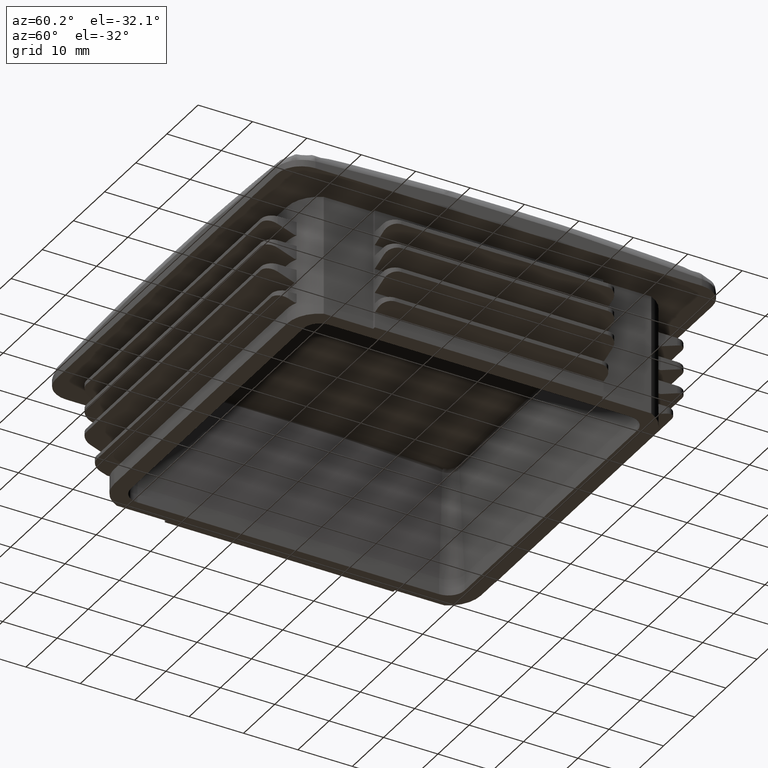
[diagram: clean part render]
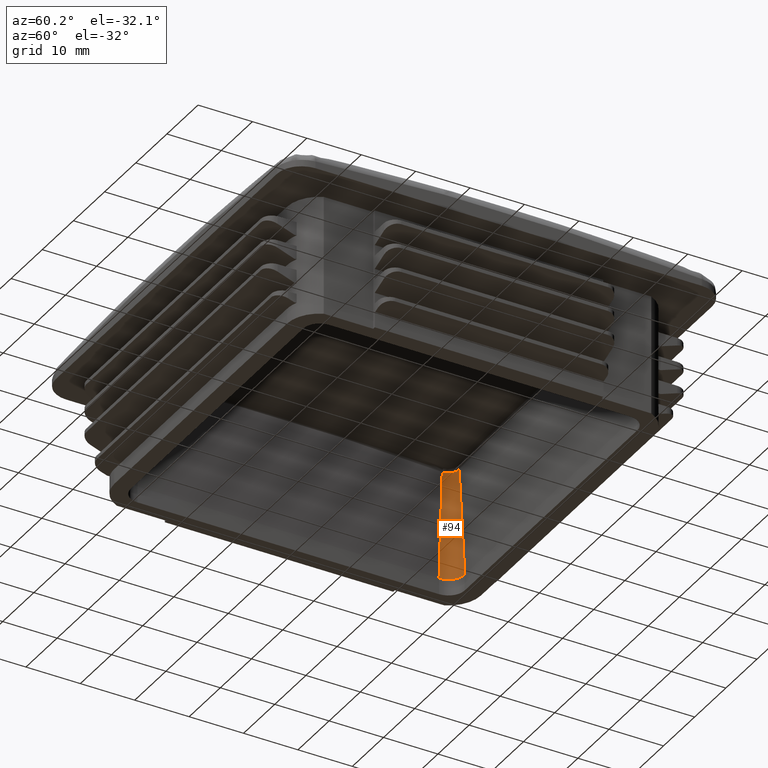
[diagram: same view with one face highlighted and labeled with its STEP entity id]
A machine part, auxiliary view. The second image highlights one B-rep face of the part: STEP entity #94.
In plain terms, the highlighted conical surface has half-angle 3 deg.
Its self-contained STEP definition (entity closure, byte-faithful):
#94 = ADVANCED_FACE( '', ( #376 ), #377, .F. );
#376 = FACE_OUTER_BOUND( '', #1741, .T. );
#377 = CONICAL_SURFACE( '', #1742, 3.00000000000000, 0.0523598775598299 );
#1741 = EDGE_LOOP( '', ( #3614, #3615, #3616, #3617 ) );
#1742 = AXIS2_PLACEMENT_3D( '', #3618, #3619, #3620 );
#3614 = ORIENTED_EDGE( '', *, *, #5672, .F. );
#3615 = ORIENTED_EDGE( '', *, *, #5671, .T. );
#3616 = ORIENTED_EDGE( '', *, *, #5669, .T. );
#3617 = ORIENTED_EDGE( '', *, *, #5676, .F. );
#3618 = CARTESIAN_POINT( '', ( -27.7000000000000, 27.7000000000000, 3.00000000000000 ) );
#3619 = DIRECTION( '', ( 0.000000000000000, 0.000000000000000, -1.00000000000000 ) );
#3620 = DIRECTION( '', ( 1.00000000000000, 0.000000000000000, 0.000000000000000 ) );
#5669 = EDGE_CURVE( '', #6411, #6420, #6421, .T. );
#5671 = EDGE_CURVE( '', #6417, #6411, #6423, .T. );
#5672 = EDGE_CURVE( '', #6417, #6424, #6425, .T. );
#5676 = EDGE_CURVE( '', #6424, #6420, #6431, .T. );
#6411 = VERTEX_POINT( '', #7946 );
#6417 = VERTEX_POINT( '', #7966 );
#6420 = VERTEX_POINT( '', #7982 );
#6421 = LINE( '', #7983, #7984 );
#6423 = B_SPLINE_CURVE_WITH_KNOTS( '', 3, ( #7987, #7988, #7989, #7990, #7991, #7992, #7993, #7994, #7995, #7996, #7997, #7998, #7999, #8000, #8001, #8002, #8003, #8004, #8005, #8006, #8007, #8008, #8009, #8010, #8011, #8012, #8013, #8014, #8015, #8016, #8017, #8018, #8019, #8020, #8021, #8022, #8023, #8024, #8025, #8026, #8027, #8028, #8029 ), .UNSPECIFIED., .F., .F., ( 4, 1, 1, 2, 1, 2, 2, 2, 1, 2, 1, 2, 2, 1, 1, 2, 2, 2, 2, 1, 2, 1, 2, 2, 1, 1, 4 ), ( 0.000000000000000, 0.000193507549806270, 0.000387015099612540, 0.000580522649418811, 0.000628899536870372, 0.000653087980596149, 0.000677276424321926, 0.000774030199225053, 0.000967537749031303, 0.00116104529883755, 0.00125779907374068, 0.00130617596119224, 0.00135455284864380, 0.00154806039845002, 0.00174156794825624, 0.00193507549806245, 0.00198345238551401, 0.00203182927296557, 0.00212858304786869, 0.00232209059767491, 0.00251559814748113, 0.00261235192238424, 0.00263654036611001, 0.00266072880983579, 0.00270910569728733, 0.00290261324709350, 0.00309612079689966 ), .UNSPECIFIED. );
#6424 = VERTEX_POINT( '', #8030 );
#6425 = LINE( '', #8031, #8032 );
#6431 = CIRCLE( '', #8141, 3.00000000000000 );
#7946 = CARTESIAN_POINT( '', ( -29.6807859189753, 27.7000000000000, 22.4477631940896 ) );
#7966 = CARTESIAN_POINT( '', ( -27.7000000000000, 29.6807859189753, 22.4477631940896 ) );
#7982 = CARTESIAN_POINT( '', ( -30.7000000000000, 27.7000000000000, 3.00000000000000 ) );
#7983 = CARTESIAN_POINT( '', ( -30.7000000000000, 27.7000000000000, 3.00000000000000 ) );
#7984 = VECTOR( '', #11391, 1000.00000000000 );
#7987 = CARTESIAN_POINT( '', ( -27.7000000000000, 29.6807859189753, 22.4477631940896 ) );
#7988 = CARTESIAN_POINT( '', ( -27.7653997939538, 29.6808814037550, 22.4459412359559 ) );
#7989 = CARTESIAN_POINT( '', ( -27.8951155579568, 29.6746008881683, 22.4425069412676 ) );
#7990 = CARTESIAN_POINT( '', ( -28.0865491098995, 29.6464306271794, 22.4379632971554 ) );
#7991 = CARTESIAN_POINT( '', ( -28.2120903478961, 29.6152239938160, 22.4353373281579 ) );
#7992 = CARTESIAN_POINT( '', ( -28.2898881186826, 29.5917461071212, 22.4338250988598 ) );
#7993 = CARTESIAN_POINT( '', ( -28.3131774215098, 29.5844040197862, 22.4333811275582 ) );
#7994 = CARTESIAN_POINT( '', ( -28.3363908960157, 29.5766091586442, 22.4329518571562 ) );
#7995 = CARTESIAN_POINT( '', ( -28.3518495916437, 29.5713113512778, 22.4326689640393 ) );
#7996 = CARTESIAN_POINT( '', ( -28.3595716588456, 29.5686113196480, 22.4325291419795 ) );
#7997 = CARTESIAN_POINT( '', ( -28.3980317735722, 29.5548957254738, 22.4318402043691 ) );
#7998 = CARTESIAN_POINT( '', ( -28.4284052598045, 29.5432053817714, 22.4313200025057 ) );
#7999 = CARTESIAN_POINT( '', ( -28.5183655472036, 29.5060237608007, 22.4298504095610 ) );
#8000 = CARTESIAN_POINT( '', ( -28.6352243758452, 29.4508301574766, 22.4281332175581 ) );
#8001 = CARTESIAN_POINT( '', ( -28.7460177152047, 29.3846021788004, 22.4268920521627 ) );
#8002 = CARTESIAN_POINT( '', ( -28.8268136932628, 29.3307487904463, 22.4261416649997 ) );
#8003 = CARTESIAN_POINT( '', ( -28.8666359064621, 29.3027746410280, 22.4258116728382 ) );
#8004 = CARTESIAN_POINT( '', ( -28.9055802184810, 29.2732034077333, 22.4255506082595 ) );
#8005 = CARTESIAN_POINT( '', ( -28.9313457068620, 29.2531301656748, 22.4253920634555 ) );
#8006 = CARTESIAN_POINT( '', ( -28.9441339303165, 29.2429098111980, 22.4253205406806 ) );
#8007 = CARTESIAN_POINT( '', ( -29.0072254482309, 29.1911942847224, 22.4250036840743 ) );
#8008 = CARTESIAN_POINT( '', ( -29.1033206388220, 29.1040946785050, 22.4247531212447 ) );
#8009 = CARTESIAN_POINT( '', ( -29.2333463051486, 28.9607728914345, 22.4251234710068 ) );
#8010 = CARTESIAN_POINT( '', ( -29.3106339380138, 28.8567904872666, 22.4258669960090 ) );
#8011 = CARTESIAN_POINT( '', ( -29.3559207772278, 28.7890924074176, 22.4264911799241 ) );
#8012 = CARTESIAN_POINT( '', ( -29.3648268936544, 28.7754170190508, 22.4266240094194 ) );
#8013 = CARTESIAN_POINT( '', ( -29.3823331088817, 28.7477915424292, 22.4269058385264 ) );
#8014 = CARTESIAN_POINT( '', ( -29.3909029341497, 28.7338889406242, 22.4270543587421 ) );
#8015 = CARTESIAN_POINT( '', ( -29.4160394030861, 28.6919613341025, 22.4275219930602 ) );
#8016 = CARTESIAN_POINT( '', ( -29.4320463285737, 28.6636963034667, 22.4278633740579 ) );
#8017 = CARTESIAN_POINT( '', ( -29.4778547682120, 28.5779779521617, 22.4289748044058 ) );
#8018 = CARTESIAN_POINT( '', ( -29.5330435648821, 28.4612291497448, 22.4306890670763 ) );
#8019 = CARTESIAN_POINT( '', ( -29.5766142084327, 28.3396318197493, 22.4328615250221 ) );
#8020 = CARTESIAN_POINT( '', ( -29.6048687752318, 28.2465878256420, 22.4346652258030 ) );
#8021 = CARTESIAN_POINT( '', ( -29.6157183268858, 28.2074342279142, 22.4354531566599 ) );
#8022 = CARTESIAN_POINT( '', ( -29.6253921835232, 28.1677899844766, 22.4362874158062 ) );
#8023 = CARTESIAN_POINT( '', ( -29.6291670177473, 28.1518927629985, 22.4366248511533 ) );
#8024 = CARTESIAN_POINT( '', ( -29.6310074410339, 28.1439226057171, 22.4367954743121 ) );
#8025 = CARTESIAN_POINT( '', ( -29.6363736710118, 28.1200083722005, 22.4373117565725 ) );
#8026 = CARTESIAN_POINT( '', ( -29.6532475976399, 28.0401796737950, 22.4390640481128 ) );
#8027 = CARTESIAN_POINT( '', ( -29.6746000561288, 27.8954681486512, 22.4424971551941 ) );
#8028 = CARTESIAN_POINT( '', ( -29.6808814040147, 27.7653999717739, 22.4459412310020 ) );
#8029 = CARTESIAN_POINT( '', ( -29.6807859189753, 27.7000000000000, 22.4477631940896 ) );
#8030 = CARTESIAN_POINT( '', ( -27.7000000000000, 30.7000000000000, 3.00000000000000 ) );
#8031 = CARTESIAN_POINT( '', ( -27.7000000000000, 30.7000000000000, 3.00000000000000 ) );
#8032 = VECTOR( '', #11393, 1000.00000000000 );
#8141 = AXIS2_PLACEMENT_3D( '', #11395, #11396, #11397 );
#11391 = DIRECTION( '', ( -0.0523359562429438, 1.29018093179425E-033, -0.998629534754574 ) );
#11393 = DIRECTION( '', ( 6.05256079548865E-017, 0.0523359562429438, -0.998629534754574 ) );
#11395 = CARTESIAN_POINT( '', ( -27.7000000000000, 27.7000000000000, 3.00000000000000 ) );
#11396 = DIRECTION( '', ( 0.000000000000000, 0.000000000000000, 1.00000000000000 ) );
#11397 = DIRECTION( '', ( 0.000000000000000, 1.00000000000000, 0.000000000000000 ) );